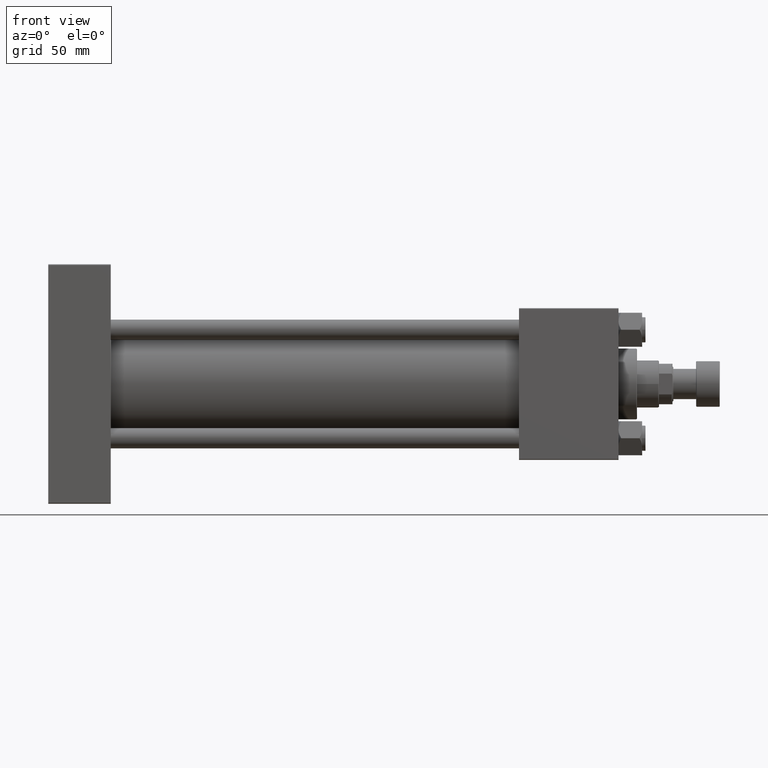
[diagram: clean part render]
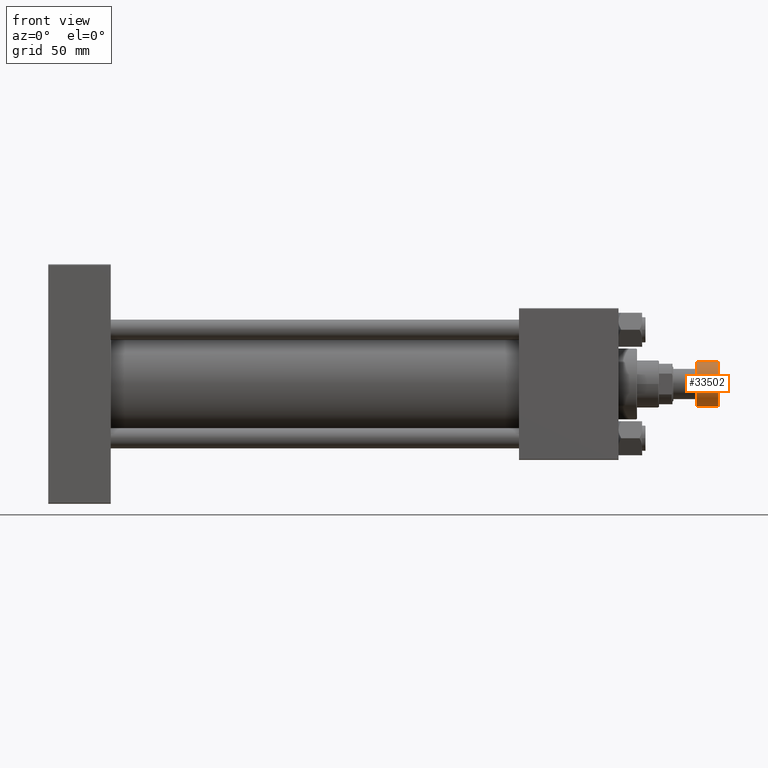
[diagram: same view with one face highlighted and labeled with its STEP entity id]
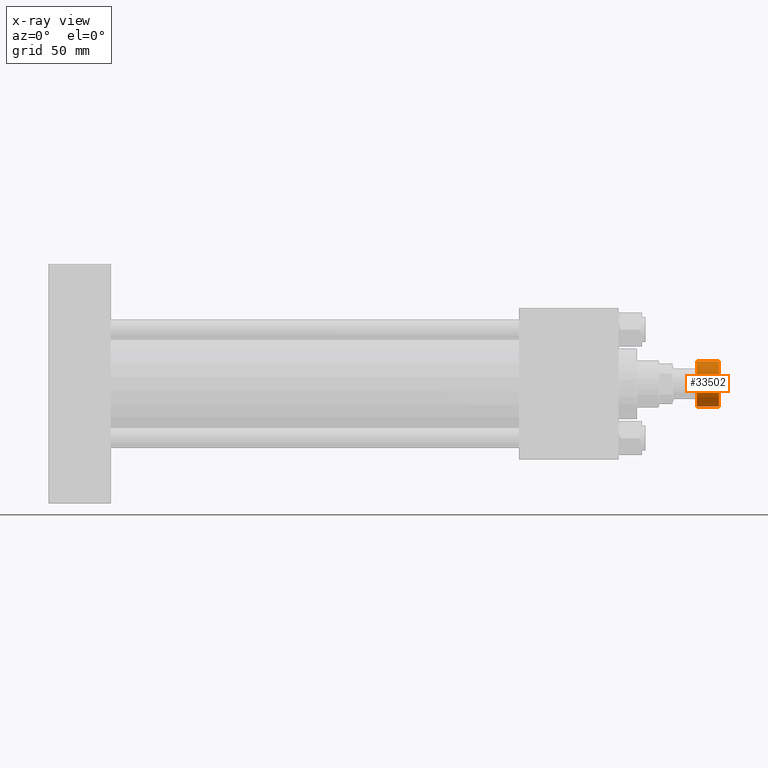
[diagram: x-ray of the same camera — body ghosted, the highlighted face saturated]
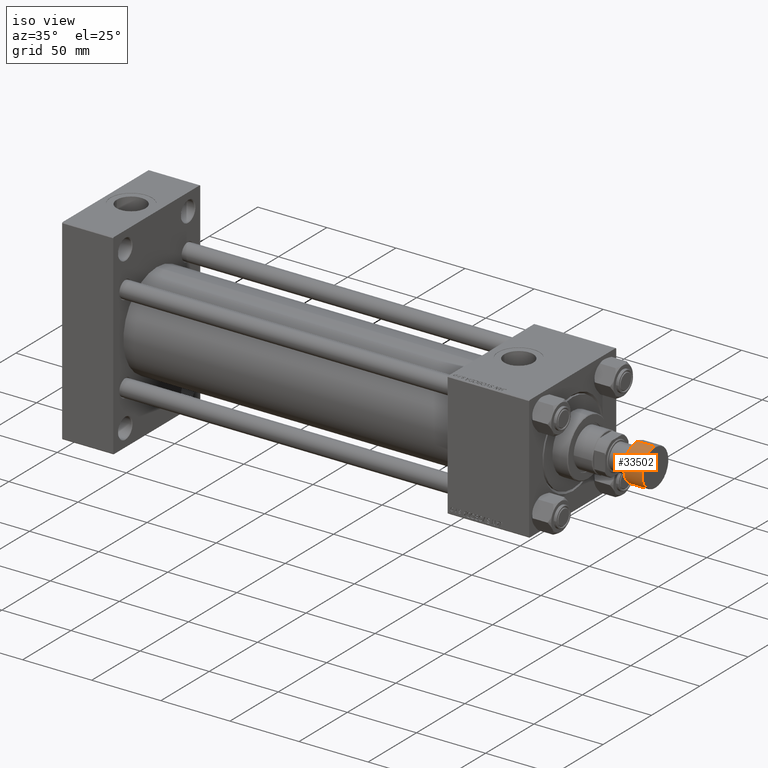
[diagram: same view with one face highlighted and labeled with its STEP entity id]
A machine part, front view. The second image highlights one B-rep face of the part: STEP entity #33502.
The next image is the same camera in x-ray: the body ghosted, the highlighted face saturated — about 0% of this face is hidden behind the body in this view.
A second angle (iso view) of the same face is appended — the face is thin or edge-on in the first view.
In plain terms, the highlighted cylindrical surface (edge-blend (fillet) strip) has radius 13.5 mm, axis along (1, 0, 0).
Its self-contained STEP definition (entity closure, byte-faithful):
#1269 = CIRCLE ( 'NONE', #23391, 13.50000000000000000 ) ;
#1775 = ORIENTED_EDGE ( 'NONE', *, *, #17796, .T. ) ;
#1975 = ORIENTED_EDGE ( 'NONE', *, *, #12641, .T. ) ;
#2545 = EDGE_LOOP ( 'NONE', ( #34316, #1775, #1975, #25042 ) ) ;
#2963 = CARTESIAN_POINT ( 'NONE',  ( 0.000000000000000000, 0.000000000000000000, -14.00000000000000000 ) ) ;
#7799 = CARTESIAN_POINT ( 'NONE',  ( -13.50000000000000000, 1.653273178848926867E-15, -14.00000000000000000 ) ) ;
#8257 = VERTEX_POINT ( 'NONE', #44281 ) ;
#12641 = EDGE_CURVE ( 'NONE', #40861, #32585, #28133, .T. ) ;
#17796 = EDGE_CURVE ( 'NONE', #8257, #40861, #1269, .T. ) ;
#19209 = DIRECTION ( 'NONE',  ( 1.000000000000000000, 0.000000000000000000, 0.000000000000000000 ) ) ;
#21101 = VECTOR ( 'NONE', #47534, 1000.000000000000000 ) ;
#23391 = AXIS2_PLACEMENT_3D ( 'NONE', #38542, #50251, #34567 ) ;
#24311 = DIRECTION ( 'NONE',  ( 0.000000000000000000, 0.000000000000000000, 1.000000000000000000 ) ) ;
#25042 = ORIENTED_EDGE ( 'NONE', *, *, #40815, .T. ) ;
#27876 = CARTESIAN_POINT ( 'NONE',  ( 13.50000000000000000, 0.000000000000000000, -14.00000000000000000 ) ) ;
#28030 = LINE ( 'NONE', #7799, #29700 ) ;
#28133 = LINE ( 'NONE', #27876, #21101 ) ;
#29047 = CIRCLE ( 'NONE', #33289, 13.50000000000000000 ) ;
#29395 = CARTESIAN_POINT ( 'NONE',  ( 0.000000000000000000, 0.000000000000000000, -0.5000000000000004441 ) ) ;
#29700 = VECTOR ( 'NONE', #24311, 1000.000000000000000 ) ;
#31168 = EDGE_CURVE ( 'NONE', #8257, #50346, #28030, .T. ) ;
#32585 = VERTEX_POINT ( 'NONE', #42810 ) ;
#33289 = AXIS2_PLACEMENT_3D ( 'NONE', #29395, #45578, #37594 ) ;
#33502 = ADVANCED_FACE ( 'NONE', ( #43884 ), #51862, .T. ) ;
#33634 = CARTESIAN_POINT ( 'NONE',  ( 13.50000000000000000, 0.000000000000000000, -13.50000000000000000 ) ) ;
#34316 = ORIENTED_EDGE ( 'NONE', *, *, #31168, .F. ) ;
#34567 = DIRECTION ( 'NONE',  ( 1.000000000000000000, 0.000000000000000000, 0.000000000000000000 ) ) ;
#37594 = DIRECTION ( 'NONE',  ( 1.000000000000000000, 0.000000000000000000, 0.000000000000000000 ) ) ;
#38268 = CARTESIAN_POINT ( 'NONE',  ( -13.50000000000000000, 1.653273178848926867E-15, -0.5000000000000004441 ) ) ;
#38542 = CARTESIAN_POINT ( 'NONE',  ( 0.000000000000000000, 0.000000000000000000, -13.50000000000000000 ) ) ;
#39884 = DIRECTION ( 'NONE',  ( 0.000000000000000000, 0.000000000000000000, 1.000000000000000000 ) ) ;
#40815 = EDGE_CURVE ( 'NONE', #32585, #50346, #29047, .T. ) ;
#40861 = VERTEX_POINT ( 'NONE', #33634 ) ;
#42810 = CARTESIAN_POINT ( 'NONE',  ( 13.50000000000000000, 0.000000000000000000, -0.5000000000000004441 ) ) ;
#43884 = FACE_OUTER_BOUND ( 'NONE', #2545, .T. ) ;
#44281 = CARTESIAN_POINT ( 'NONE',  ( -13.50000000000000000, 1.653273178848926867E-15, -13.50000000000000000 ) ) ;
#44999 = AXIS2_PLACEMENT_3D ( 'NONE', #2963, #39884, #19209 ) ;
#45578 = DIRECTION ( 'NONE',  ( -0.000000000000000000, -0.000000000000000000, -1.000000000000000000 ) ) ;
#47534 = DIRECTION ( 'NONE',  ( 0.000000000000000000, 0.000000000000000000, 1.000000000000000000 ) ) ;
#50251 = DIRECTION ( 'NONE',  ( 0.000000000000000000, 0.000000000000000000, 1.000000000000000000 ) ) ;
#50346 = VERTEX_POINT ( 'NONE', #38268 ) ;
#51862 = CYLINDRICAL_SURFACE ( 'NONE', #44999, 13.50000000000000000 ) ;